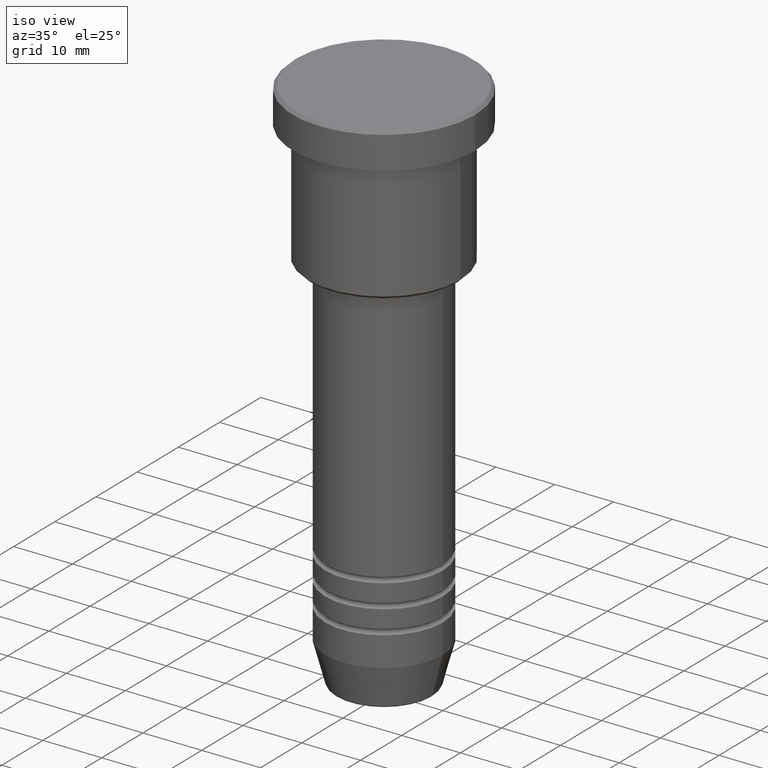
[diagram: clean part render]
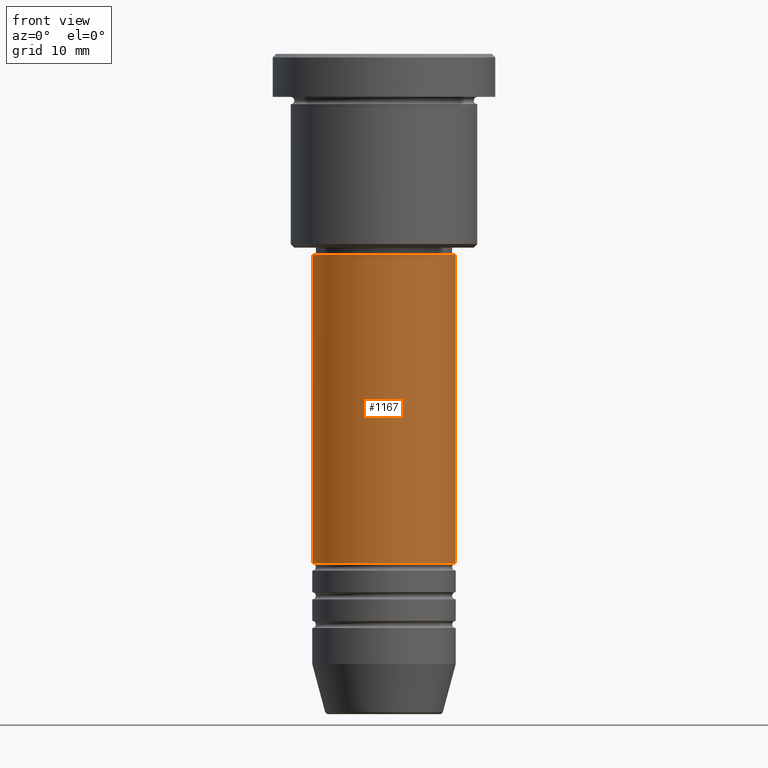
[diagram: tour spotlight — one face highlighted and labeled with its STEP entity id]
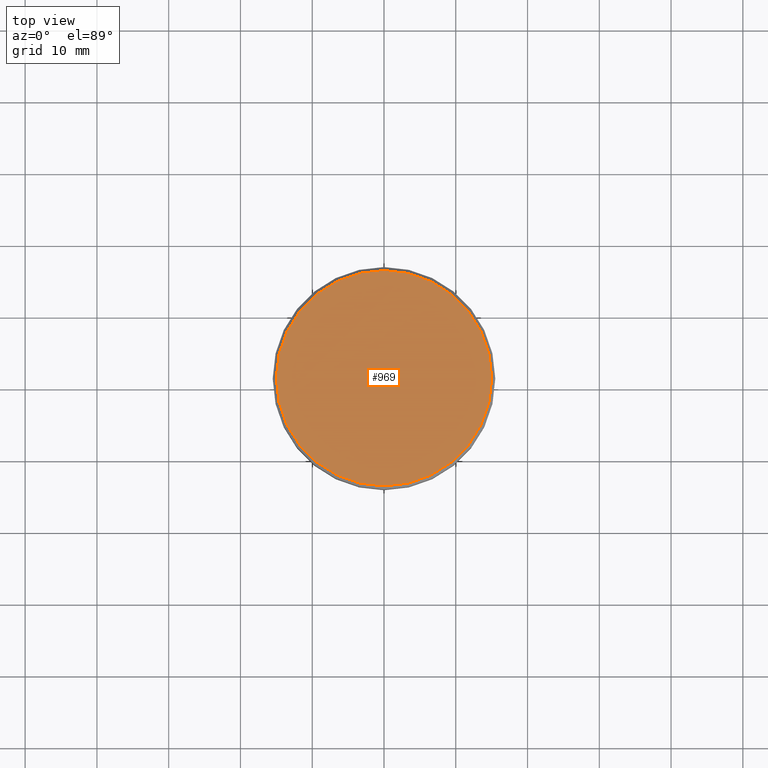
[diagram: tour spotlight — one face highlighted and labeled with its STEP entity id]
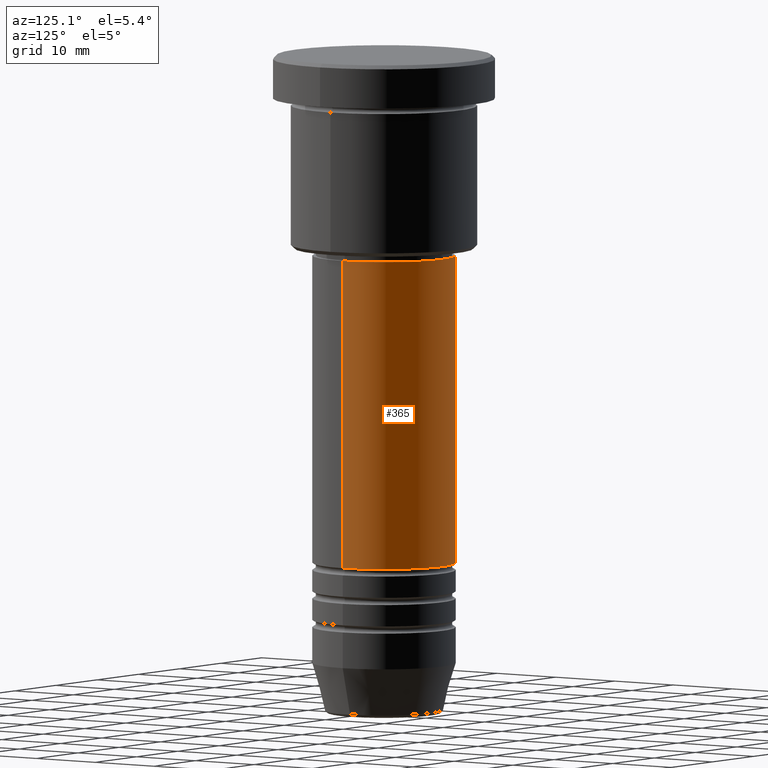
[diagram: tour spotlight — one face highlighted and labeled with its STEP entity id]
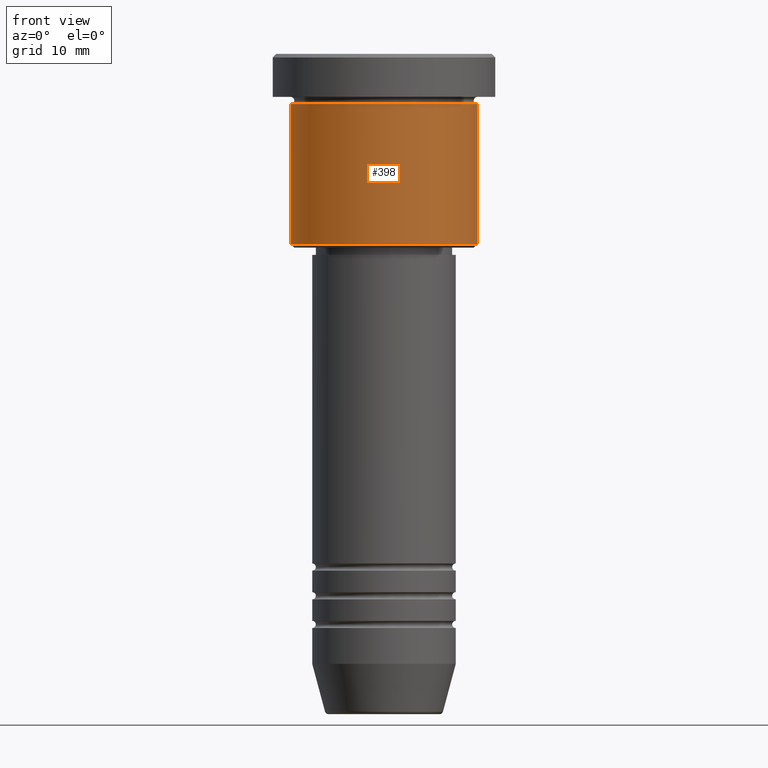
[diagram: tour spotlight — one face highlighted and labeled with its STEP entity id]
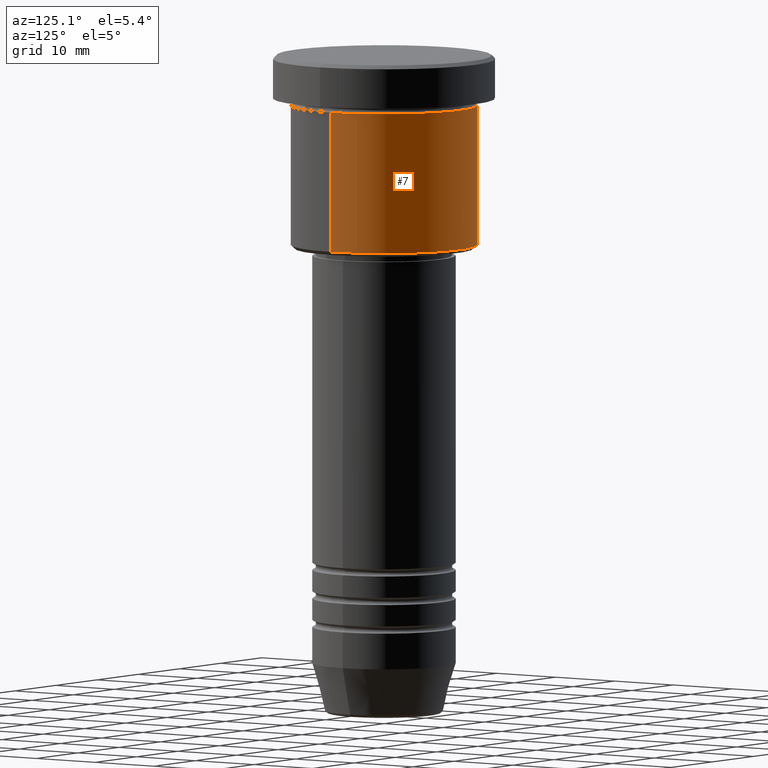
[diagram: tour spotlight — one face highlighted and labeled with its STEP entity id]
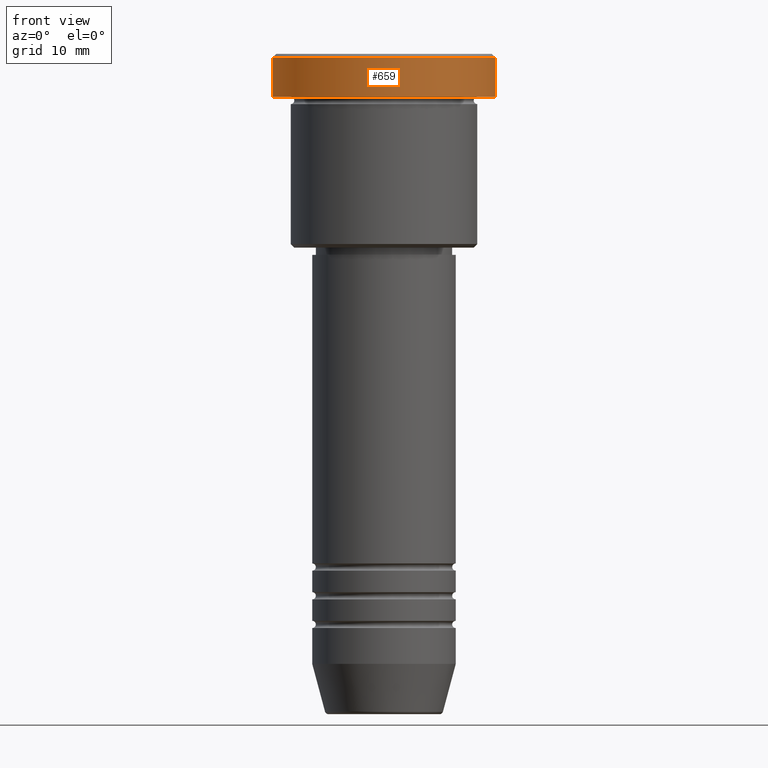
[diagram: tour spotlight — one face highlighted and labeled with its STEP entity id]
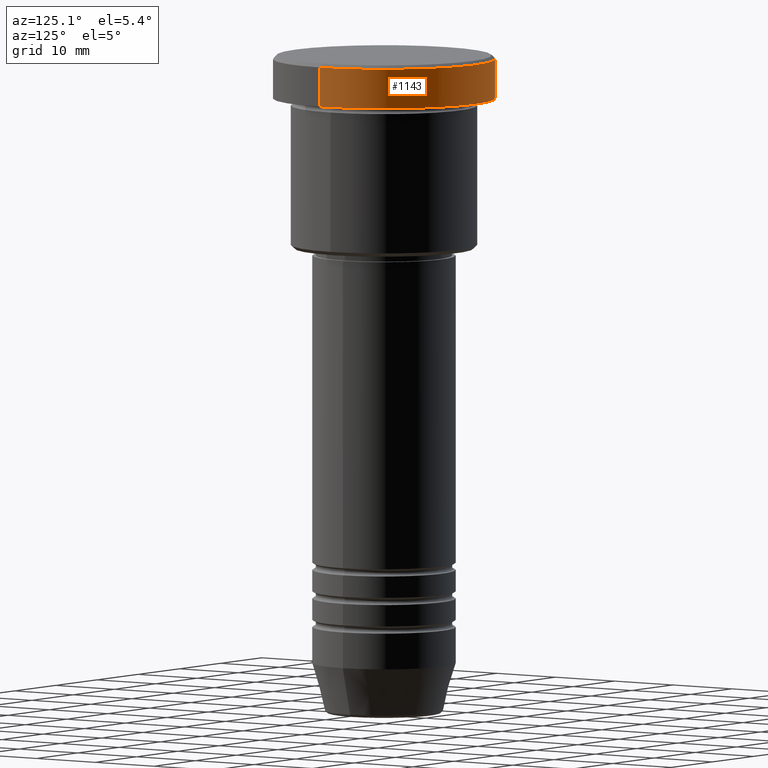
[diagram: tour spotlight — one face highlighted and labeled with its STEP entity id]
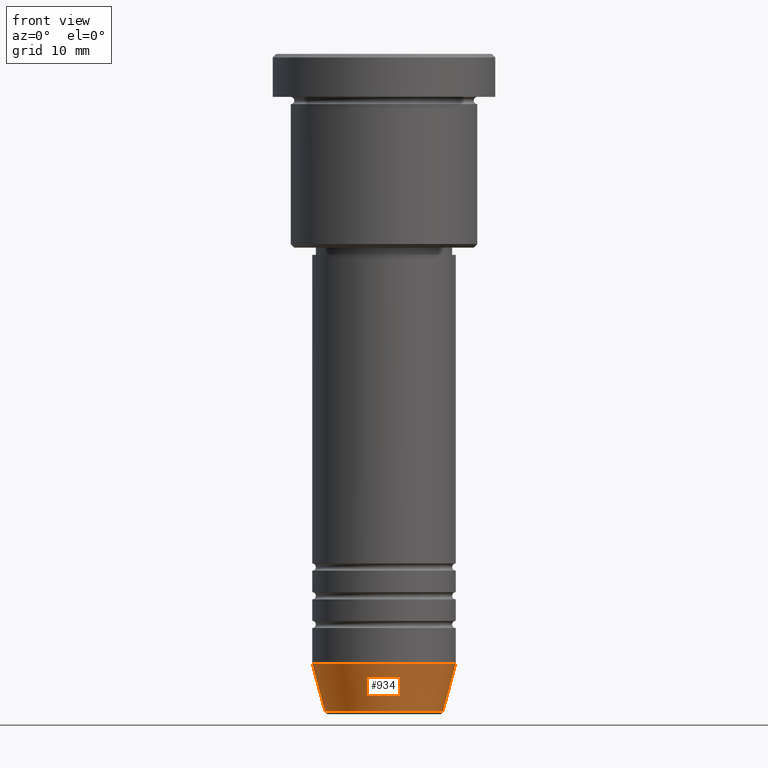
[diagram: tour spotlight — one face highlighted and labeled with its STEP entity id]
A machine part: a face-by-face anatomy tour. The part has 43 B-rep faces; the first image is the clean iso view, then the 8 largest visible faces are spotlighted one at a time (largest first), each with its STEP entity span.

Face 1 — front view, entity #1167. In plain terms, the highlighted cylindrical surface (partial cylindrical patch) has radius 10 mm, axis along (-0, -0, 1).
Definition (entity closure, byte-faithful):
#28 = VERTEX_POINT ( 'NONE', #364 ) ;
#33 = EDGE_CURVE ( 'NONE', #632, #28, #1122, .T. ) ;
#71 = EDGE_CURVE ( 'NONE', #328, #28, #457, .T. ) ;
#78 = AXIS2_PLACEMENT_3D ( 'NONE', #600, #320, #975 ) ;
#118 = EDGE_CURVE ( 'NONE', #960, #632, #1114, .T. ) ;
#158 = EDGE_CURVE ( 'NONE', #960, #328, #1079, .T. ) ;
#203 = ORIENTED_EDGE ( 'NONE', *, *, #118, .F. ) ;
#311 = CARTESIAN_POINT ( 'NONE',  ( 0.000000000000000000, 0.000000000000000000, -70.99999999999990052 ) ) ;
#318 = AXIS2_PLACEMENT_3D ( 'NONE', #353, #906, #359 ) ;
#320 = DIRECTION ( 'NONE',  ( -0.000000000000000000, -0.000000000000000000, 1.000000000000000000 ) ) ;
#328 = VERTEX_POINT ( 'NONE', #693 ) ;
#353 = CARTESIAN_POINT ( 'NONE',  ( 0.000000000000000000, 0.000000000000000000, -28.00000000000001421 ) ) ;
#359 = DIRECTION ( 'NONE',  ( 1.000000000000000000, 0.000000000000000000, 0.000000000000000000 ) ) ;
#364 = CARTESIAN_POINT ( 'NONE',  ( 9.999999999999998224, 0.000000000000000000, -28.00000000000001421 ) ) ;
#385 = DIRECTION ( 'NONE',  ( -0.000000000000000000, -0.000000000000000000, 1.000000000000000000 ) ) ;
#396 = DIRECTION ( 'NONE',  ( 1.000000000000000000, 0.000000000000000000, 0.000000000000000000 ) ) ;
#401 = ORIENTED_EDGE ( 'NONE', *, *, #158, .T. ) ;
#402 = VECTOR ( 'NONE', #385, 1000.000000000000000 ) ;
#419 = FACE_OUTER_BOUND ( 'NONE', #1146, .T. ) ;
#457 = LINE ( 'NONE', #730, #1029 ) ;
#559 = AXIS2_PLACEMENT_3D ( 'NONE', #311, #1034, #396 ) ;
#600 = CARTESIAN_POINT ( 'NONE',  ( 0.000000000000000000, 0.000000000000000000, 0.000000000000000000 ) ) ;
#632 = VERTEX_POINT ( 'NONE', #1033 ) ;
#662 = CARTESIAN_POINT ( 'NONE',  ( -10.00000000000000000, 1.224646799147353256E-15, 0.000000000000000000 ) ) ;
#693 = CARTESIAN_POINT ( 'NONE',  ( 10.00000000000000178, 0.000000000000000000, -70.99999999999990052 ) ) ;
#730 = CARTESIAN_POINT ( 'NONE',  ( 10.00000000000000000, 0.000000000000000000, 0.000000000000000000 ) ) ;
#783 = CYLINDRICAL_SURFACE ( 'NONE', #78, 10.00000000000000000 ) ;
#804 = CARTESIAN_POINT ( 'NONE',  ( -10.00000000000000178, 1.224646799147353454E-15, -70.99999999999990052 ) ) ;
#903 = ORIENTED_EDGE ( 'NONE', *, *, #71, .T. ) ;
#906 = DIRECTION ( 'NONE',  ( -0.000000000000000000, -0.000000000000000000, 1.000000000000000000 ) ) ;
#960 = VERTEX_POINT ( 'NONE', #804 ) ;
#975 = DIRECTION ( 'NONE',  ( 1.000000000000000000, 0.000000000000000000, 0.000000000000000000 ) ) ;
#1013 = DIRECTION ( 'NONE',  ( -0.000000000000000000, -0.000000000000000000, 1.000000000000000000 ) ) ;
#1029 = VECTOR ( 'NONE', #1013, 1000.000000000000000 ) ;
#1033 = CARTESIAN_POINT ( 'NONE',  ( -9.999999999999998224, 1.224646799147353256E-15, -28.00000000000001421 ) ) ;
#1034 = DIRECTION ( 'NONE',  ( -0.000000000000000000, -0.000000000000000000, 1.000000000000000000 ) ) ;
#1079 = CIRCLE ( 'NONE', #559, 10.00000000000000178 ) ;
#1088 = ORIENTED_EDGE ( 'NONE', *, *, #33, .F. ) ;
#1114 = LINE ( 'NONE', #662, #402 ) ;
#1122 = CIRCLE ( 'NONE', #318, 9.999999999999998224 ) ;
#1146 = EDGE_LOOP ( 'NONE', ( #203, #401, #903, #1088 ) ) ;
#1167 = ADVANCED_FACE ( 'NONE', ( #419 ), #783, .T. ) ;

Face 2 — top view, entity #969. In plain terms, the highlighted planar face has unit normal (0, -0, 1).
Definition (entity closure, byte-faithful):
#92 = CIRCLE ( 'NONE', #753, 15.00000000000001421 ) ;
#137 = CARTESIAN_POINT ( 'NONE',  ( -15.00000000000001421, 0.000000000000000000, 0.000000000000000000 ) ) ;
#162 = PLANE ( 'NONE',  #285 ) ;
#256 = ORIENTED_EDGE ( 'NONE', *, *, #788, .T. ) ;
#267 = AXIS2_PLACEMENT_3D ( 'NONE', #1008, #666, #660 ) ;
#285 = AXIS2_PLACEMENT_3D ( 'NONE', #633, #1001, #541 ) ;
#508 = DIRECTION ( 'NONE',  ( -0.000000000000000000, -0.000000000000000000, 1.000000000000000000 ) ) ;
#541 = DIRECTION ( 'NONE',  ( 1.000000000000000000, 0.000000000000000000, 0.000000000000000000 ) ) ;
#601 = CIRCLE ( 'NONE', #267, 15.00000000000001421 ) ;
#633 = CARTESIAN_POINT ( 'NONE',  ( 0.000000000000000000, 0.000000000000000000, 0.000000000000000000 ) ) ;
#660 = DIRECTION ( 'NONE',  ( 1.000000000000000000, 0.000000000000000000, 0.000000000000000000 ) ) ;
#666 = DIRECTION ( 'NONE',  ( -0.000000000000000000, -0.000000000000000000, 1.000000000000000000 ) ) ;
#699 = CARTESIAN_POINT ( 'NONE',  ( 0.000000000000000000, 0.000000000000000000, 0.000000000000000000 ) ) ;
#710 = FACE_OUTER_BOUND ( 'NONE', #1170, .T. ) ;
#753 = AXIS2_PLACEMENT_3D ( 'NONE', #699, #508, #1055 ) ;
#788 = EDGE_CURVE ( 'NONE', #1157, #821, #92, .T. ) ;
#821 = VERTEX_POINT ( 'NONE', #860 ) ;
#860 = CARTESIAN_POINT ( 'NONE',  ( 15.00000000000001421, 1.867586368699714559E-15, 0.000000000000000000 ) ) ;
#969 = ADVANCED_FACE ( 'NONE', ( #710 ), #162, .T. ) ;
#1001 = DIRECTION ( 'NONE',  ( 0.000000000000000000, -0.000000000000000000, 1.000000000000000000 ) ) ;
#1008 = CARTESIAN_POINT ( 'NONE',  ( 0.000000000000000000, 0.000000000000000000, 0.000000000000000000 ) ) ;
#1055 = DIRECTION ( 'NONE',  ( 1.000000000000000000, 0.000000000000000000, 0.000000000000000000 ) ) ;
#1058 = EDGE_CURVE ( 'NONE', #821, #1157, #601, .T. ) ;
#1152 = ORIENTED_EDGE ( 'NONE', *, *, #1058, .T. ) ;
#1157 = VERTEX_POINT ( 'NONE', #137 ) ;
#1170 = EDGE_LOOP ( 'NONE', ( #256, #1152 ) ) ;

Face 3 — auxiliary view, entity #365. In plain terms, the highlighted cylindrical surface (partial cylindrical patch) has radius 10 mm, axis along (-0, -0, 1).
Definition (entity closure, byte-faithful):
#28 = VERTEX_POINT ( 'NONE', #364 ) ;
#71 = EDGE_CURVE ( 'NONE', #328, #28, #457, .T. ) ;
#116 = ORIENTED_EDGE ( 'NONE', *, *, #71, .F. ) ;
#118 = EDGE_CURVE ( 'NONE', #960, #632, #1114, .T. ) ;
#127 = EDGE_CURVE ( 'NONE', #28, #632, #657, .T. ) ;
#235 = CARTESIAN_POINT ( 'NONE',  ( 0.000000000000000000, 0.000000000000000000, 0.000000000000000000 ) ) ;
#257 = CARTESIAN_POINT ( 'NONE',  ( 0.000000000000000000, 0.000000000000000000, -70.99999999999990052 ) ) ;
#261 = AXIS2_PLACEMENT_3D ( 'NONE', #1018, #295, #1127 ) ;
#295 = DIRECTION ( 'NONE',  ( -0.000000000000000000, -0.000000000000000000, 1.000000000000000000 ) ) ;
#296 = AXIS2_PLACEMENT_3D ( 'NONE', #235, #332, #959 ) ;
#328 = VERTEX_POINT ( 'NONE', #693 ) ;
#332 = DIRECTION ( 'NONE',  ( -0.000000000000000000, -0.000000000000000000, 1.000000000000000000 ) ) ;
#364 = CARTESIAN_POINT ( 'NONE',  ( 9.999999999999998224, 0.000000000000000000, -28.00000000000001421 ) ) ;
#365 = ADVANCED_FACE ( 'NONE', ( #426 ), #1156, .T. ) ;
#385 = DIRECTION ( 'NONE',  ( -0.000000000000000000, -0.000000000000000000, 1.000000000000000000 ) ) ;
#393 = CIRCLE ( 'NONE', #795, 10.00000000000000178 ) ;
#402 = VECTOR ( 'NONE', #385, 1000.000000000000000 ) ;
#426 = FACE_OUTER_BOUND ( 'NONE', #908, .T. ) ;
#457 = LINE ( 'NONE', #730, #1029 ) ;
#493 = ORIENTED_EDGE ( 'NONE', *, *, #118, .T. ) ;
#610 = ORIENTED_EDGE ( 'NONE', *, *, #910, .T. ) ;
#632 = VERTEX_POINT ( 'NONE', #1033 ) ;
#657 = CIRCLE ( 'NONE', #261, 9.999999999999998224 ) ;
#662 = CARTESIAN_POINT ( 'NONE',  ( -10.00000000000000000, 1.224646799147353256E-15, 0.000000000000000000 ) ) ;
#693 = CARTESIAN_POINT ( 'NONE',  ( 10.00000000000000178, 0.000000000000000000, -70.99999999999990052 ) ) ;
#730 = CARTESIAN_POINT ( 'NONE',  ( 10.00000000000000000, 0.000000000000000000, 0.000000000000000000 ) ) ;
#795 = AXIS2_PLACEMENT_3D ( 'NONE', #257, #893, #996 ) ;
#804 = CARTESIAN_POINT ( 'NONE',  ( -10.00000000000000178, 1.224646799147353454E-15, -70.99999999999990052 ) ) ;
#893 = DIRECTION ( 'NONE',  ( -0.000000000000000000, -0.000000000000000000, 1.000000000000000000 ) ) ;
#908 = EDGE_LOOP ( 'NONE', ( #610, #493, #1166, #116 ) ) ;
#910 = EDGE_CURVE ( 'NONE', #328, #960, #393, .T. ) ;
#959 = DIRECTION ( 'NONE',  ( 1.000000000000000000, 0.000000000000000000, 0.000000000000000000 ) ) ;
#960 = VERTEX_POINT ( 'NONE', #804 ) ;
#996 = DIRECTION ( 'NONE',  ( 1.000000000000000000, 0.000000000000000000, 0.000000000000000000 ) ) ;
#1013 = DIRECTION ( 'NONE',  ( -0.000000000000000000, -0.000000000000000000, 1.000000000000000000 ) ) ;
#1018 = CARTESIAN_POINT ( 'NONE',  ( 0.000000000000000000, 0.000000000000000000, -28.00000000000001421 ) ) ;
#1029 = VECTOR ( 'NONE', #1013, 1000.000000000000000 ) ;
#1033 = CARTESIAN_POINT ( 'NONE',  ( -9.999999999999998224, 1.224646799147353256E-15, -28.00000000000001421 ) ) ;
#1114 = LINE ( 'NONE', #662, #402 ) ;
#1127 = DIRECTION ( 'NONE',  ( 1.000000000000000000, 0.000000000000000000, 0.000000000000000000 ) ) ;
#1156 = CYLINDRICAL_SURFACE ( 'NONE', #296, 10.00000000000000000 ) ;
#1166 = ORIENTED_EDGE ( 'NONE', *, *, #127, .F. ) ;

Face 4 — front view, entity #398. In plain terms, the highlighted cylindrical surface (partial cylindrical patch) has radius 13 mm, axis along (-0, -0, 1).
Definition (entity closure, byte-faithful):
#8 = DIRECTION ( 'NONE',  ( -0.000000000000000000, -0.000000000000000000, 1.000000000000000000 ) ) ;
#79 = ORIENTED_EDGE ( 'NONE', *, *, #1019, .F. ) ;
#193 = CARTESIAN_POINT ( 'NONE',  ( 0.000000000000000000, 0.000000000000000000, 0.000000000000000000 ) ) ;
#199 = CARTESIAN_POINT ( 'NONE',  ( -13.00000000000000178, 1.592040838891559293E-15, -26.49999999999999645 ) ) ;
#205 = LINE ( 'NONE', #1106, #973 ) ;
#282 = CYLINDRICAL_SURFACE ( 'NONE', #1042, 13.00000000000000178 ) ;
#287 = DIRECTION ( 'NONE',  ( -0.000000000000000000, -0.000000000000000000, 1.000000000000000000 ) ) ;
#323 = LINE ( 'NONE', #980, #928 ) ;
#344 = EDGE_CURVE ( 'NONE', #505, #1070, #323, .T. ) ;
#367 = DIRECTION ( 'NONE',  ( 1.000000000000000000, 0.000000000000000000, 0.000000000000000000 ) ) ;
#386 = ORIENTED_EDGE ( 'NONE', *, *, #618, .T. ) ;
#398 = ADVANCED_FACE ( 'NONE', ( #1051 ), #282, .T. ) ;
#441 = DIRECTION ( 'NONE',  ( 1.000000000000000000, 0.000000000000000000, 0.000000000000000000 ) ) ;
#464 = ORIENTED_EDGE ( 'NONE', *, *, #344, .T. ) ;
#505 = VERTEX_POINT ( 'NONE', #905 ) ;
#515 = VERTEX_POINT ( 'NONE', #818 ) ;
#555 = CARTESIAN_POINT ( 'NONE',  ( 13.00000000000000178, 0.000000000000000000, -6.999999999999995559 ) ) ;
#583 = CIRCLE ( 'NONE', #621, 13.00000000000000178 ) ;
#588 = VERTEX_POINT ( 'NONE', #199 ) ;
#618 = EDGE_CURVE ( 'NONE', #588, #505, #583, .T. ) ;
#621 = AXIS2_PLACEMENT_3D ( 'NONE', #747, #938, #1118 ) ;
#644 = DIRECTION ( 'NONE',  ( -0.000000000000000000, -0.000000000000000000, 1.000000000000000000 ) ) ;
#703 = CARTESIAN_POINT ( 'NONE',  ( 0.000000000000000000, 0.000000000000000000, -6.999999999999995559 ) ) ;
#732 = ORIENTED_EDGE ( 'NONE', *, *, #880, .F. ) ;
#747 = CARTESIAN_POINT ( 'NONE',  ( 0.000000000000000000, 0.000000000000000000, -26.49999999999999645 ) ) ;
#818 = CARTESIAN_POINT ( 'NONE',  ( -13.00000000000000178, 1.592040838891559293E-15, -6.999999999999995559 ) ) ;
#856 = AXIS2_PLACEMENT_3D ( 'NONE', #703, #8, #441 ) ;
#880 = EDGE_CURVE ( 'NONE', #515, #1070, #954, .T. ) ;
#895 = EDGE_LOOP ( 'NONE', ( #79, #386, #464, #732 ) ) ;
#905 = CARTESIAN_POINT ( 'NONE',  ( 13.00000000000000178, 0.000000000000000000, -26.49999999999999645 ) ) ;
#928 = VECTOR ( 'NONE', #1067, 1000.000000000000000 ) ;
#938 = DIRECTION ( 'NONE',  ( -0.000000000000000000, -0.000000000000000000, 1.000000000000000000 ) ) ;
#954 = CIRCLE ( 'NONE', #856, 13.00000000000000178 ) ;
#973 = VECTOR ( 'NONE', #287, 1000.000000000000000 ) ;
#980 = CARTESIAN_POINT ( 'NONE',  ( 13.00000000000000178, 0.000000000000000000, 0.000000000000000000 ) ) ;
#1019 = EDGE_CURVE ( 'NONE', #588, #515, #205, .T. ) ;
#1042 = AXIS2_PLACEMENT_3D ( 'NONE', #193, #644, #367 ) ;
#1051 = FACE_OUTER_BOUND ( 'NONE', #895, .T. ) ;
#1067 = DIRECTION ( 'NONE',  ( -0.000000000000000000, -0.000000000000000000, 1.000000000000000000 ) ) ;
#1070 = VERTEX_POINT ( 'NONE', #555 ) ;
#1106 = CARTESIAN_POINT ( 'NONE',  ( -13.00000000000000178, 1.592040838891559293E-15, 0.000000000000000000 ) ) ;
#1118 = DIRECTION ( 'NONE',  ( -1.000000000000000000, 0.000000000000000000, 0.000000000000000000 ) ) ;

Face 5 — auxiliary view, entity #7. In plain terms, the highlighted cylindrical surface (partial cylindrical patch) has radius 13 mm, axis along (-0, -0, 1).
Definition (entity closure, byte-faithful):
#7 = ADVANCED_FACE ( 'NONE', ( #172 ), #713, .T. ) ;
#22 = CARTESIAN_POINT ( 'NONE',  ( 0.000000000000000000, 0.000000000000000000, -6.999999999999995559 ) ) ;
#85 = CARTESIAN_POINT ( 'NONE',  ( 0.000000000000000000, 0.000000000000000000, -26.49999999999999645 ) ) ;
#88 = EDGE_CURVE ( 'NONE', #505, #588, #1181, .T. ) ;
#105 = AXIS2_PLACEMENT_3D ( 'NONE', #22, #748, #656 ) ;
#136 = EDGE_CURVE ( 'NONE', #1070, #515, #930, .T. ) ;
#149 = AXIS2_PLACEMENT_3D ( 'NONE', #85, #552, #924 ) ;
#172 = FACE_OUTER_BOUND ( 'NONE', #255, .T. ) ;
#199 = CARTESIAN_POINT ( 'NONE',  ( -13.00000000000000178, 1.592040838891559293E-15, -26.49999999999999645 ) ) ;
#205 = LINE ( 'NONE', #1106, #973 ) ;
#255 = EDGE_LOOP ( 'NONE', ( #658, #572, #993, #560 ) ) ;
#263 = AXIS2_PLACEMENT_3D ( 'NONE', #527, #637, #626 ) ;
#287 = DIRECTION ( 'NONE',  ( -0.000000000000000000, -0.000000000000000000, 1.000000000000000000 ) ) ;
#323 = LINE ( 'NONE', #980, #928 ) ;
#344 = EDGE_CURVE ( 'NONE', #505, #1070, #323, .T. ) ;
#505 = VERTEX_POINT ( 'NONE', #905 ) ;
#515 = VERTEX_POINT ( 'NONE', #818 ) ;
#527 = CARTESIAN_POINT ( 'NONE',  ( 0.000000000000000000, 0.000000000000000000, 0.000000000000000000 ) ) ;
#552 = DIRECTION ( 'NONE',  ( -0.000000000000000000, -0.000000000000000000, 1.000000000000000000 ) ) ;
#555 = CARTESIAN_POINT ( 'NONE',  ( 13.00000000000000178, 0.000000000000000000, -6.999999999999995559 ) ) ;
#560 = ORIENTED_EDGE ( 'NONE', *, *, #344, .F. ) ;
#572 = ORIENTED_EDGE ( 'NONE', *, *, #1019, .T. ) ;
#588 = VERTEX_POINT ( 'NONE', #199 ) ;
#626 = DIRECTION ( 'NONE',  ( 1.000000000000000000, 0.000000000000000000, 0.000000000000000000 ) ) ;
#637 = DIRECTION ( 'NONE',  ( -0.000000000000000000, -0.000000000000000000, 1.000000000000000000 ) ) ;
#656 = DIRECTION ( 'NONE',  ( 1.000000000000000000, 0.000000000000000000, 0.000000000000000000 ) ) ;
#658 = ORIENTED_EDGE ( 'NONE', *, *, #88, .T. ) ;
#713 = CYLINDRICAL_SURFACE ( 'NONE', #263, 13.00000000000000178 ) ;
#748 = DIRECTION ( 'NONE',  ( -0.000000000000000000, -0.000000000000000000, 1.000000000000000000 ) ) ;
#818 = CARTESIAN_POINT ( 'NONE',  ( -13.00000000000000178, 1.592040838891559293E-15, -6.999999999999995559 ) ) ;
#905 = CARTESIAN_POINT ( 'NONE',  ( 13.00000000000000178, 0.000000000000000000, -26.49999999999999645 ) ) ;
#924 = DIRECTION ( 'NONE',  ( -1.000000000000000000, 0.000000000000000000, 0.000000000000000000 ) ) ;
#928 = VECTOR ( 'NONE', #1067, 1000.000000000000000 ) ;
#930 = CIRCLE ( 'NONE', #105, 13.00000000000000178 ) ;
#973 = VECTOR ( 'NONE', #287, 1000.000000000000000 ) ;
#980 = CARTESIAN_POINT ( 'NONE',  ( 13.00000000000000178, 0.000000000000000000, 0.000000000000000000 ) ) ;
#993 = ORIENTED_EDGE ( 'NONE', *, *, #136, .F. ) ;
#1019 = EDGE_CURVE ( 'NONE', #588, #515, #205, .T. ) ;
#1067 = DIRECTION ( 'NONE',  ( -0.000000000000000000, -0.000000000000000000, 1.000000000000000000 ) ) ;
#1070 = VERTEX_POINT ( 'NONE', #555 ) ;
#1106 = CARTESIAN_POINT ( 'NONE',  ( -13.00000000000000178, 1.592040838891559293E-15, 0.000000000000000000 ) ) ;
#1181 = CIRCLE ( 'NONE', #149, 13.00000000000000178 ) ;

Face 6 — front view, entity #659. In plain terms, the highlighted cylindrical surface (partial cylindrical patch) has radius 15.5 mm, axis along (-0, -0, 1).
Definition (entity closure, byte-faithful):
#43 = CARTESIAN_POINT ( 'NONE',  ( 0.000000000000000000, 0.000000000000000000, -5.999999999999995559 ) ) ;
#61 = CARTESIAN_POINT ( 'NONE',  ( 15.50000000000000000, 0.000000000000000000, -0.4999999999999987232 ) ) ;
#86 = VERTEX_POINT ( 'NONE', #195 ) ;
#111 = AXIS2_PLACEMENT_3D ( 'NONE', #575, #948, #650 ) ;
#195 = CARTESIAN_POINT ( 'NONE',  ( -15.50000000000000000, 1.898202538678397557E-15, -0.4999999999999987232 ) ) ;
#197 = EDGE_LOOP ( 'NONE', ( #862, #782, #412, #832 ) ) ;
#218 = CYLINDRICAL_SURFACE ( 'NONE', #111, 15.50000000000000000 ) ;
#231 = DIRECTION ( 'NONE',  ( 1.000000000000000000, 0.000000000000000000, 0.000000000000000000 ) ) ;
#234 = DIRECTION ( 'NONE',  ( 1.000000000000000000, 0.000000000000000000, 0.000000000000000000 ) ) ;
#265 = CIRCLE ( 'NONE', #1124, 15.50000000000000000 ) ;
#266 = CARTESIAN_POINT ( 'NONE',  ( -15.50000000000000000, 1.898202538678397557E-15, -5.999999999999995559 ) ) ;
#283 = VECTOR ( 'NONE', #1072, 1000.000000000000000 ) ;
#340 = CARTESIAN_POINT ( 'NONE',  ( 15.50000000000000000, 0.000000000000000000, 0.000000000000000000 ) ) ;
#372 = EDGE_CURVE ( 'NONE', #968, #827, #791, .T. ) ;
#399 = LINE ( 'NONE', #1060, #283 ) ;
#411 = CIRCLE ( 'NONE', #523, 15.50000000000000000 ) ;
#412 = ORIENTED_EDGE ( 'NONE', *, *, #372, .T. ) ;
#511 = VERTEX_POINT ( 'NONE', #266 ) ;
#523 = AXIS2_PLACEMENT_3D ( 'NONE', #43, #976, #234 ) ;
#575 = CARTESIAN_POINT ( 'NONE',  ( 0.000000000000000000, 0.000000000000000000, 0.000000000000000000 ) ) ;
#604 = DIRECTION ( 'NONE',  ( -0.000000000000000000, -0.000000000000000000, 1.000000000000000000 ) ) ;
#650 = DIRECTION ( 'NONE',  ( 1.000000000000000000, 0.000000000000000000, 0.000000000000000000 ) ) ;
#659 = ADVANCED_FACE ( 'NONE', ( #1126 ), #218, .T. ) ;
#691 = EDGE_CURVE ( 'NONE', #511, #968, #411, .T. ) ;
#697 = EDGE_CURVE ( 'NONE', #511, #86, #399, .T. ) ;
#757 = EDGE_CURVE ( 'NONE', #827, #86, #265, .T. ) ;
#764 = CARTESIAN_POINT ( 'NONE',  ( 0.000000000000000000, 0.000000000000000000, -0.4999999999999987232 ) ) ;
#782 = ORIENTED_EDGE ( 'NONE', *, *, #691, .T. ) ;
#791 = LINE ( 'NONE', #340, #999 ) ;
#827 = VERTEX_POINT ( 'NONE', #61 ) ;
#832 = ORIENTED_EDGE ( 'NONE', *, *, #757, .T. ) ;
#862 = ORIENTED_EDGE ( 'NONE', *, *, #697, .F. ) ;
#948 = DIRECTION ( 'NONE',  ( -0.000000000000000000, -0.000000000000000000, 1.000000000000000000 ) ) ;
#968 = VERTEX_POINT ( 'NONE', #1173 ) ;
#976 = DIRECTION ( 'NONE',  ( -0.000000000000000000, -0.000000000000000000, 1.000000000000000000 ) ) ;
#999 = VECTOR ( 'NONE', #604, 1000.000000000000000 ) ;
#1060 = CARTESIAN_POINT ( 'NONE',  ( -15.50000000000000000, 1.898202538678397557E-15, 0.000000000000000000 ) ) ;
#1072 = DIRECTION ( 'NONE',  ( -0.000000000000000000, -0.000000000000000000, 1.000000000000000000 ) ) ;
#1124 = AXIS2_PLACEMENT_3D ( 'NONE', #764, #1141, #231 ) ;
#1126 = FACE_OUTER_BOUND ( 'NONE', #197, .T. ) ;
#1141 = DIRECTION ( 'NONE',  ( 0.000000000000000000, 0.000000000000000000, -1.000000000000000000 ) ) ;
#1173 = CARTESIAN_POINT ( 'NONE',  ( 15.50000000000000000, 0.000000000000000000, -5.999999999999995559 ) ) ;

Face 7 — auxiliary view, entity #1143. In plain terms, the highlighted cylindrical surface (partial cylindrical patch) has radius 15.5 mm, axis along (-0, -0, 1).
Definition (entity closure, byte-faithful):
#37 = AXIS2_PLACEMENT_3D ( 'NONE', #130, #1130, #244 ) ;
#61 = CARTESIAN_POINT ( 'NONE',  ( 15.50000000000000000, 0.000000000000000000, -0.4999999999999987232 ) ) ;
#74 = DIRECTION ( 'NONE',  ( 1.000000000000000000, 0.000000000000000000, 0.000000000000000000 ) ) ;
#86 = VERTEX_POINT ( 'NONE', #195 ) ;
#87 = DIRECTION ( 'NONE',  ( 0.000000000000000000, 0.000000000000000000, -1.000000000000000000 ) ) ;
#130 = CARTESIAN_POINT ( 'NONE',  ( 0.000000000000000000, 0.000000000000000000, 0.000000000000000000 ) ) ;
#156 = ORIENTED_EDGE ( 'NONE', *, *, #372, .F. ) ;
#195 = CARTESIAN_POINT ( 'NONE',  ( -15.50000000000000000, 1.898202538678397557E-15, -0.4999999999999987232 ) ) ;
#244 = DIRECTION ( 'NONE',  ( 1.000000000000000000, 0.000000000000000000, 0.000000000000000000 ) ) ;
#266 = CARTESIAN_POINT ( 'NONE',  ( -15.50000000000000000, 1.898202538678397557E-15, -5.999999999999995559 ) ) ;
#283 = VECTOR ( 'NONE', #1072, 1000.000000000000000 ) ;
#340 = CARTESIAN_POINT ( 'NONE',  ( 15.50000000000000000, 0.000000000000000000, 0.000000000000000000 ) ) ;
#372 = EDGE_CURVE ( 'NONE', #968, #827, #791, .T. ) ;
#399 = LINE ( 'NONE', #1060, #283 ) ;
#446 = ORIENTED_EDGE ( 'NONE', *, *, #918, .T. ) ;
#495 = CARTESIAN_POINT ( 'NONE',  ( 0.000000000000000000, 0.000000000000000000, -5.999999999999995559 ) ) ;
#511 = VERTEX_POINT ( 'NONE', #266 ) ;
#604 = DIRECTION ( 'NONE',  ( -0.000000000000000000, -0.000000000000000000, 1.000000000000000000 ) ) ;
#677 = DIRECTION ( 'NONE',  ( 1.000000000000000000, 0.000000000000000000, 0.000000000000000000 ) ) ;
#681 = CIRCLE ( 'NONE', #1086, 15.50000000000000000 ) ;
#697 = EDGE_CURVE ( 'NONE', #511, #86, #399, .T. ) ;
#751 = FACE_OUTER_BOUND ( 'NONE', #1059, .T. ) ;
#763 = EDGE_CURVE ( 'NONE', #968, #511, #681, .T. ) ;
#791 = LINE ( 'NONE', #340, #999 ) ;
#827 = VERTEX_POINT ( 'NONE', #61 ) ;
#857 = ORIENTED_EDGE ( 'NONE', *, *, #697, .T. ) ;
#876 = AXIS2_PLACEMENT_3D ( 'NONE', #904, #87, #74 ) ;
#904 = CARTESIAN_POINT ( 'NONE',  ( 0.000000000000000000, 0.000000000000000000, -0.4999999999999987232 ) ) ;
#918 = EDGE_CURVE ( 'NONE', #86, #827, #937, .T. ) ;
#937 = CIRCLE ( 'NONE', #876, 15.50000000000000000 ) ;
#968 = VERTEX_POINT ( 'NONE', #1173 ) ;
#974 = ORIENTED_EDGE ( 'NONE', *, *, #763, .T. ) ;
#999 = VECTOR ( 'NONE', #604, 1000.000000000000000 ) ;
#1059 = EDGE_LOOP ( 'NONE', ( #974, #857, #446, #156 ) ) ;
#1060 = CARTESIAN_POINT ( 'NONE',  ( -15.50000000000000000, 1.898202538678397557E-15, 0.000000000000000000 ) ) ;
#1072 = DIRECTION ( 'NONE',  ( -0.000000000000000000, -0.000000000000000000, 1.000000000000000000 ) ) ;
#1086 = AXIS2_PLACEMENT_3D ( 'NONE', #495, #1149, #677 ) ;
#1123 = CYLINDRICAL_SURFACE ( 'NONE', #37, 15.50000000000000000 ) ;
#1130 = DIRECTION ( 'NONE',  ( -0.000000000000000000, -0.000000000000000000, 1.000000000000000000 ) ) ;
#1143 = ADVANCED_FACE ( 'NONE', ( #751 ), #1123, .T. ) ;
#1149 = DIRECTION ( 'NONE',  ( -0.000000000000000000, -0.000000000000000000, 1.000000000000000000 ) ) ;
#1173 = CARTESIAN_POINT ( 'NONE',  ( 15.50000000000000000, 0.000000000000000000, -5.999999999999995559 ) ) ;

Face 8 — front view, entity #934. In plain terms, the highlighted conical surface has half-angle 15 deg.
Definition (entity closure, byte-faithful):
#11 = CIRCLE ( 'NONE', #674, 8.223655072137194821 ) ;
#17 = EDGE_LOOP ( 'NONE', ( #694, #177, #549, #593 ) ) ;
#45 = VERTEX_POINT ( 'NONE', #445 ) ;
#91 = CARTESIAN_POINT ( 'NONE',  ( 0.000000000000000000, 0.000000000000000000, -85.00000000000000000 ) ) ;
#131 = CONICAL_SURFACE ( 'NONE', #1144, 10.00000000000000000, 0.2617993877991498519 ) ;
#147 = VERTEX_POINT ( 'NONE', #1119 ) ;
#177 = ORIENTED_EDGE ( 'NONE', *, *, #416, .T. ) ;
#183 = DIRECTION ( 'NONE',  ( 0.2588190451025211281, 0.000000000000000000, 0.9659258262890680902 ) ) ;
#228 = VECTOR ( 'NONE', #1048, 1000.000000000000114 ) ;
#230 = AXIS2_PLACEMENT_3D ( 'NONE', #863, #1148, #687 ) ;
#392 = VECTOR ( 'NONE', #183, 1000.000000000000114 ) ;
#416 = EDGE_CURVE ( 'NONE', #520, #45, #11, .T. ) ;
#445 = CARTESIAN_POINT ( 'NONE',  ( 8.223655072137194821, 0.000000000000000000, -91.62940952255125637 ) ) ;
#448 = DIRECTION ( 'NONE',  ( 1.000000000000000000, 0.000000000000000000, 0.000000000000000000 ) ) ;
#456 = CARTESIAN_POINT ( 'NONE',  ( -8.223655072137194821, 1.115877042642912054E-15, -91.62940952255125637 ) ) ;
#520 = VERTEX_POINT ( 'NONE', #456 ) ;
#543 = DIRECTION ( 'NONE',  ( -0.000000000000000000, -0.000000000000000000, 1.000000000000000000 ) ) ;
#549 = ORIENTED_EDGE ( 'NONE', *, *, #849, .T. ) ;
#551 = DIRECTION ( 'NONE',  ( 1.000000000000000000, 0.000000000000000000, 0.000000000000000000 ) ) ;
#593 = ORIENTED_EDGE ( 'NONE', *, *, #1174, .F. ) ;
#614 = DIRECTION ( 'NONE',  ( -0.000000000000000000, -0.000000000000000000, 1.000000000000000000 ) ) ;
#629 = CARTESIAN_POINT ( 'NONE',  ( 10.00000000000000000, 0.000000000000000000, -85.00000000000000000 ) ) ;
#643 = CIRCLE ( 'NONE', #230, 10.00000000000000000 ) ;
#672 = EDGE_CURVE ( 'NONE', #520, #1120, #759, .T. ) ;
#674 = AXIS2_PLACEMENT_3D ( 'NONE', #1011, #543, #551 ) ;
#687 = DIRECTION ( 'NONE',  ( 1.000000000000000000, 0.000000000000000000, 0.000000000000000000 ) ) ;
#694 = ORIENTED_EDGE ( 'NONE', *, *, #672, .F. ) ;
#759 = LINE ( 'NONE', #1017, #228 ) ;
#815 = FACE_OUTER_BOUND ( 'NONE', #17, .T. ) ;
#822 = LINE ( 'NONE', #629, #392 ) ;
#849 = EDGE_CURVE ( 'NONE', #45, #147, #822, .T. ) ;
#863 = CARTESIAN_POINT ( 'NONE',  ( 0.000000000000000000, 0.000000000000000000, -85.00000000000000000 ) ) ;
#934 = ADVANCED_FACE ( 'NONE', ( #815 ), #131, .T. ) ;
#1011 = CARTESIAN_POINT ( 'NONE',  ( 0.000000000000000000, 0.000000000000000000, -91.62940952255125637 ) ) ;
#1017 = CARTESIAN_POINT ( 'NONE',  ( -10.00000000000000000, 1.224646799147353256E-15, -85.00000000000000000 ) ) ;
#1036 = CARTESIAN_POINT ( 'NONE',  ( -10.00000000000000000, 1.224646799147353256E-15, -85.00000000000000000 ) ) ;
#1048 = DIRECTION ( 'NONE',  ( -0.2588190451025211281, 3.169619151431769872E-17, 0.9659258262890680902 ) ) ;
#1119 = CARTESIAN_POINT ( 'NONE',  ( 10.00000000000000000, 0.000000000000000000, -85.00000000000000000 ) ) ;
#1120 = VERTEX_POINT ( 'NONE', #1036 ) ;
#1144 = AXIS2_PLACEMENT_3D ( 'NONE', #91, #614, #448 ) ;
#1148 = DIRECTION ( 'NONE',  ( -0.000000000000000000, -0.000000000000000000, 1.000000000000000000 ) ) ;
#1174 = EDGE_CURVE ( 'NONE', #1120, #147, #643, .T. ) ;